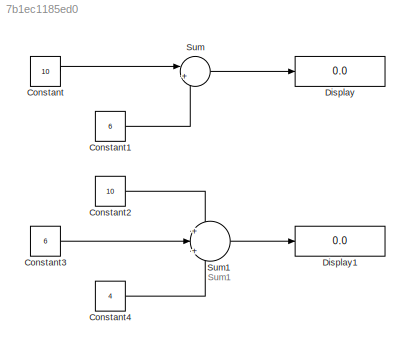
MODEL slx_7b1ec1185ed0
KIND model
CONFIG AbsTol = auto
CONFIG EnableMultiTasking = off
CONFIG FixedStep = auto
CONFIG MaxStep = auto
CONFIG MinStep = auto
CONFIG RelTol = 1e-3
CONFIG SampleTimeConstraint = Unconstrained
CONFIG Solver = VariableStepAuto
CONFIG SolverName = VariableStepAuto
CONFIG StartTime = 0.0
CONFIG StopTime = 10.0
BLOCK [Constant] Constant
  Value = 10
BLOCK [Constant] Constant1
  Value = 6
BLOCK [Constant] Constant2
  Value = 10
BLOCK [Constant] Constant3
  Value = 6
BLOCK [Constant] Constant4
  Value = 4
BLOCK [Display] Display
  Decimation = 1
  Ports = [1]
BLOCK [Display] Display1
  Decimation = 1
  Ports = [1]
BLOCK [Sum] Sum
  Inputs = |++
  NameLocation = top
  Ports = [2, 1]
BLOCK [Sum] Sum1
  Inputs = +|+|-
  Ports = [3, 1]
ANNOTATION (root): Sum1
LINE Constant1:1 -> Sum:2
LINE Constant2:1 -> Sum1:1
LINE Constant3:1 -> Sum1:2
LINE Constant4:1 -> Sum1:3
LINE Constant:1 -> Sum:1
LINE Sum1:1 -> Display1:1
LINE Sum:1 -> Display:1
